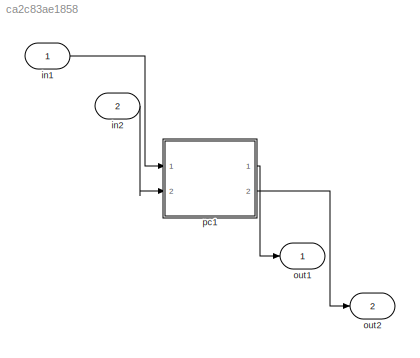
MODEL slx_ca2c83ae1858
KIND model
CONFIG AbsTol = auto
CONFIG EnableMultiTasking = off
CONFIG FixedStep = auto
CONFIG MaxStep = auto
CONFIG MinStep = auto
CONFIG RelTol = 1e-3
CONFIG SampleTimeConstraint = Unconstrained
CONFIG Solver = VariableStepAuto
CONFIG SolverName = VariableStepAuto
CONFIG StartTime = 0.0
CONFIG StopTime = 10.0
BLOCK [Inport] in1
  IconDisplay = Port number
  OutDataTypeStr = double
BLOCK [Inport] in2
  IconDisplay = Port number
  OutDataTypeStr = int32
  Port = 2
BLOCK [Outport] out1
  IconDisplay = Port number
  OutDataTypeStr = double
BLOCK [Outport] out2
  IconDisplay = Port number
  OutDataTypeStr = boolean
  Port = 2
BLOCK [ModelReference] pc1
  ModelNameDialog = PartC1
  ModelReferenceVersion = 1.1
  Ports = [2, 2]
LINE in1:1 -> pc1:1
LINE in2:1 -> pc1:2
LINE pc1:1 -> out1:1
LINE pc1:2 -> out2:1
